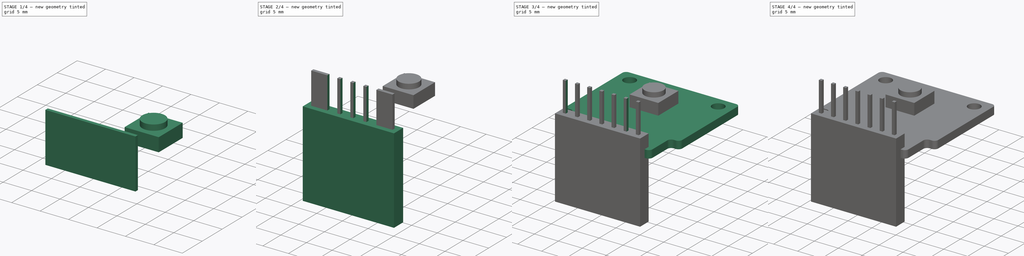
[diagram: build sequence overview — one tinted view per stage of 4, left to right]
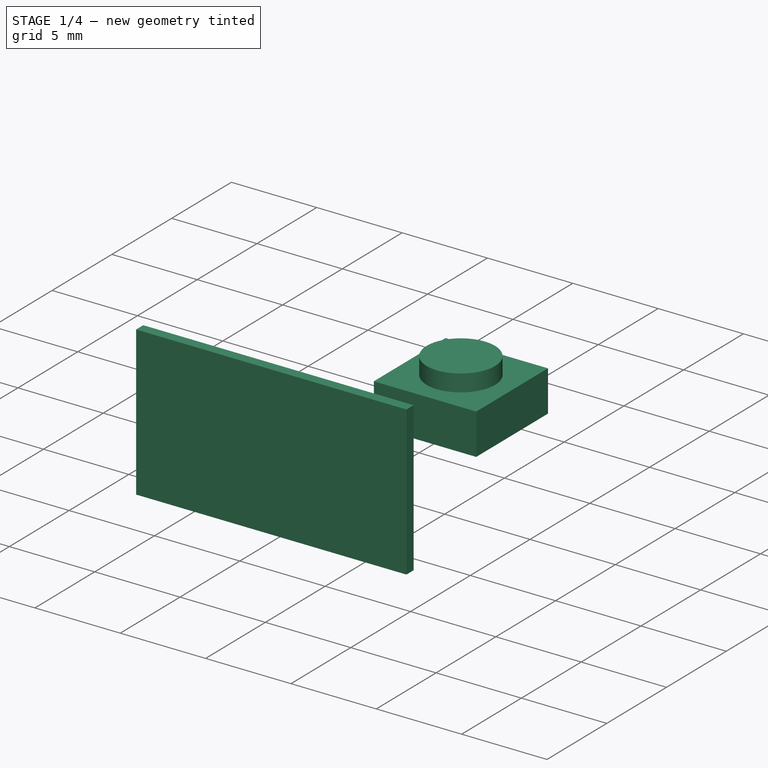
[diagram: stage 1 of 4 — iso view after this stage's code; geometry added in this stage tinted green]
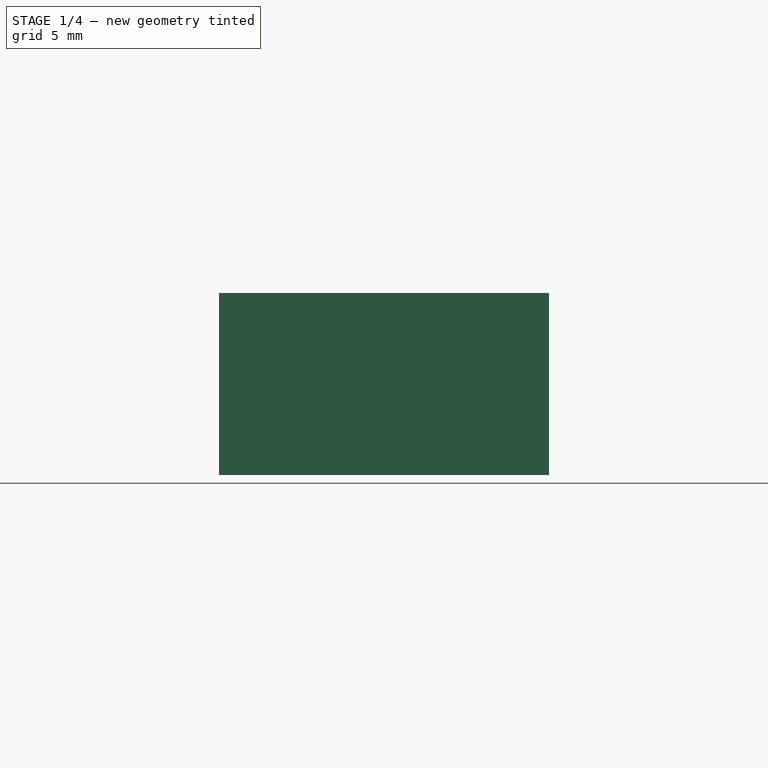
[diagram: stage 1 of 4 — front view after this stage's code; geometry added in this stage tinted green]
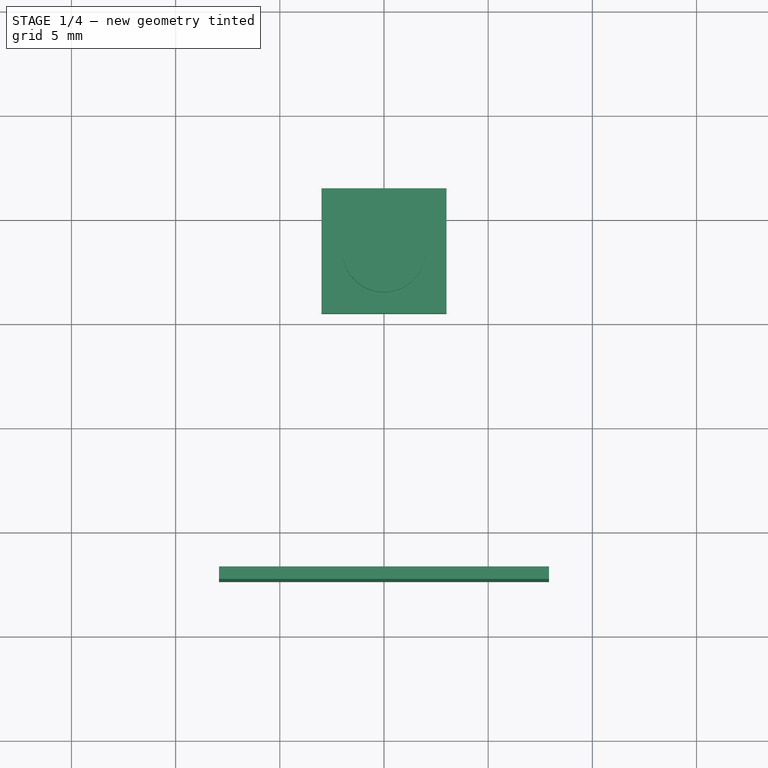
[diagram: stage 1 of 4 — top view after this stage's code; geometry added in this stage tinted green]
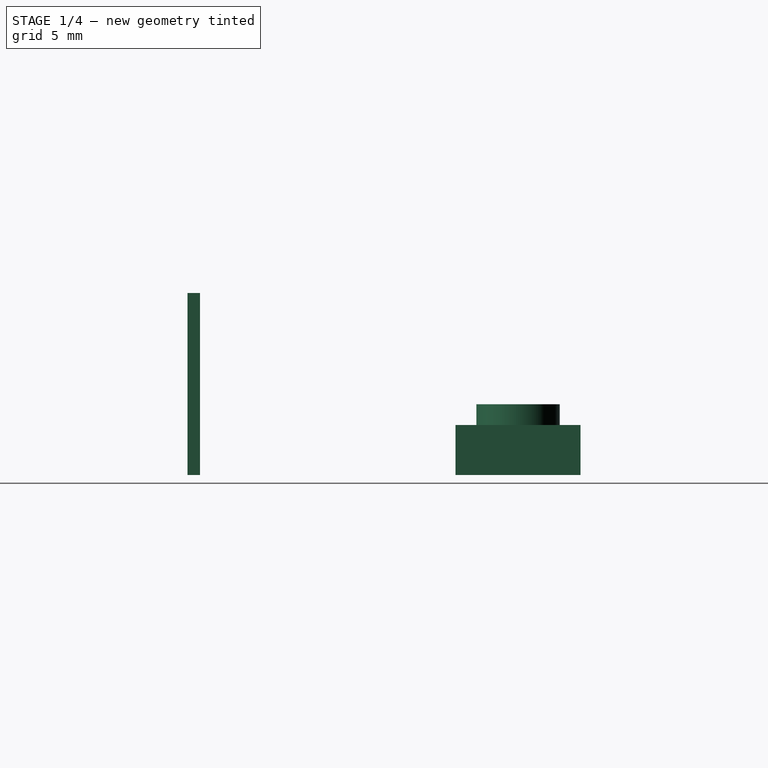
[diagram: stage 1 of 4 — right view after this stage's code; geometry added in this stage tinted green]
FCSTD DOCUMENT  (FreeCAD 0.20R29177 +426 (Git))
Label: Pimoroni_OptFlowSens
License: All rights reserved
LicenseURL: http://en.wikipedia.org/wiki/All_rights_reserved
objects: Sketcher::SketchObject×9, PartDesign::Pad×6, PartDesign::Body×5, PartDesign::LinearPattern×4, PartDesign::Pocket×3, Spreadsheet::Sheet×1, App::Part×1
note: 36 computed .brp shape members not serialized (recipe doc carries the construction recipe); baked Part::Feature solids carry a one-line shape summary decoded from their .brp

FEATURE [PartDesign::Body] Body012  label="PinBlock"
  Group = -> [Sketch014,Pad007]
  Origin = -> Origin016
  Placement = pos=(0,1.6,-4.2) rot=(0,0,1;0rad)
  Tip = -> Pad007
FEATURE [Sketcher::SketchObject] Sketch017
  FullyConstrained = true
  MapMode = 5
  Placement = pos=(0,0,0) rot=(1,0,0;1.5708rad)
  Support = -> [XZ_Plane017]
  expr: Constraints[57] = <<params>>.pin_leng * 2
  expr: Constraints[58] = <<params>>.pin_square_block_dim - <<params>>.std_tol
  expr: Constraints[59] = <<params>>.pin_width
  expr: Constraints[61] = <<params>>.pin_spacing
  sketch-geometry (24):
    g0: LineSegment StartX=-2.24 StartY=14.64 StartZ=0 EndX=-0.3 EndY=14.64 EndZ=0
    g1: LineSegment StartX=-0.3 StartY=14.64 StartZ=0 EndX=-0.3 EndY=2.24 EndZ=0
    g2: LineSegment StartX=-0.3 StartY=2.24 StartZ=0 EndX=-2.24 EndY=2.24 EndZ=0
    g3: LineSegment StartX=-2.24 StartY=2.24 StartZ=0 EndX=-2.24 EndY=14.64 EndZ=0
    g4: LineSegment StartX=0.3 StartY=14.64 StartZ=0 EndX=2.24 EndY=14.64 EndZ=0
    g5: LineSegment StartX=2.24 StartY=14.64 StartZ=0 EndX=2.24 EndY=2.24 EndZ=0
    g6: LineSegment StartX=2.24 StartY=2.24 StartZ=0 EndX=0.3 EndY=2.24 EndZ=0
    g7: LineSegment StartX=0.3 StartY=2.24 StartZ=0 EndX=0.3 EndY=14.64 EndZ=0
    g8: LineSegment StartX=2.84 StartY=14.64 StartZ=0 EndX=4.78 EndY=14.64 EndZ=0
    g9: LineSegment StartX=4.78 StartY=14.64 StartZ=0 EndX=4.78 EndY=2.24 EndZ=0
    g10: LineSegment StartX=4.78 StartY=2.24 StartZ=0 EndX=2.84 EndY=2.24 EndZ=0
    g11: LineSegment StartX=2.84 StartY=2.24 StartZ=0 EndX=2.84 EndY=14.64 EndZ=0
    g12: LineSegment StartX=-4.78 StartY=14.64 StartZ=0 EndX=-2.84 EndY=14.64 EndZ=0
    g13: LineSegment StartX=-2.84 StartY=14.64 StartZ=0 EndX=-2.84 EndY=2.24 EndZ=0
    g14: LineSegment StartX=-2.84 StartY=2.24 StartZ=0 EndX=-4.78 EndY=2.24 EndZ=0
    g15: LineSegment StartX=-4.78 StartY=2.24 StartZ=0 EndX=-4.78 EndY=14.64 EndZ=0
    g16: LineSegment StartX=-2.84 StartY=14.64 StartZ=0 EndX=-2.24 EndY=14.64 EndZ=0
    g17: LineSegment StartX=-0.3 StartY=14.64 StartZ=0 EndX=0.3 EndY=14.64 EndZ=0
    g18: LineSegment StartX=2.24 StartY=14.64 StartZ=0 EndX=2.84 EndY=14.64 EndZ=0
    g19: LineSegment StartX=-2.84 StartY=2.24 StartZ=0 EndX=-2.24 EndY=2.24 EndZ=0
    g20: LineSegment StartX=-0.3 StartY=2.24 StartZ=0 EndX=0.3 EndY=2.24 EndZ=0
    g21: LineSegment StartX=2.24 StartY=2.24 StartZ=0 EndX=2.84 EndY=2.24 EndZ=0
    g22: GeomPoint X=0 Y=2.24 Z=0
    g23: GeomPoint X=2.54 Y=2.24 Z=0
  constraints (62):
    c: Coincident(g0,g1)
    c: Coincident(g1,g2)
    c: Coincident(g2,g3)
    c: Coincident(g3,g0)
    c: Horizontal(g0)
    c: Horizontal(g2)
    c: Vertical(g1)
    c: Vertical(g3)
    c: Coincident(g4,g5)
    c: Coincident(g5,g6)
    c: Coincident(g6,g7)
    c: Coincident(g7,g4)
    c: Horizontal(g4)
    c: Horizontal(g6)
    c: Vertical(g5)
    c: Vertical(g7)
    c: Coincident(g8,g9)
    c: Coincident(g9,g10)
    c: Coincident(g10,g11)
    c: Coincident(g11,g8)
    c: Horizontal(g8)
    c: Horizontal(g10)
    c: Vertical(g9)
    c: Vertical(g11)
    c: Coincident(g12,g13)
    c: Coincident(g13,g14)
    c: Coincident(g14,g15)
    c: Coincident(g15,g12)
    c: Horizontal(g12)
    c: Horizontal(g14)
    c: Vertical(g13)
    c: Vertical(g15)
    c: Equal(g12,g0)
    c: Equal(g0,g4)
    c: Equal(g4,g8)
    c: Coincident(g16,g12)
    c: Coincident(g16,g0)
    c: Coincident(g17,g0)
    c: Coincident(g17,g4)
    c: Horizontal(g17)
    c: Coincident(g18,g4)
    c: Coincident(g18,g8)
    c: Horizontal(g18)
    c: Coincident(g19,g13)
    c: Coincident(g19,g2)
    c: Coincident(g20,g1)
    c: Coincident(g20,g6)
    c: Coincident(g21,g5)
    c: Coincident(g21,g10)
    c: Equal(g16,g17)
    c: Equal(g17,g18)
    c: Horizontal(g16)
    c: Horizontal(g19)
    c: Horizontal(g20)
    c: Horizontal(g21)
    c: PointOnObject(g22,g-2)
    c: Symmetric(g1,g6,g22)
    c: DistanceY(g9,g9) = 12.4
    c: DistanceY(g-1,g22) = 2.24
    c: DistanceX(g17,g17) = 0.6
    c: Symmetric(g5,g10,g23)
    c: DistanceX(g22,g23) = 2.54
FEATURE [Sketcher::SketchObject] Sketch016
  FullyConstrained = true
  MapMode = 5
  Support = -> [XY_Plane017]
  expr: Constraints[10] = <<params>>.light_width / 2 - <<params>>.light_hole_edge_offset
  expr: Constraints[11] = <<params>>.pin_width
  expr: Constraints[12] = <<params>>.pin_square_block_dim * (<<params>>.light_num_pins - 1) + <<params>>.pin_width
  sketch-geometry (5):
    g0: LineSegment StartX=-7.92 StartY=-11.765 StartZ=0 EndX=7.92 EndY=-11.765 EndZ=0
    g1: LineSegment StartX=7.92 StartY=-11.765 StartZ=0 EndX=7.92 EndY=-12.365 EndZ=0
    g2: LineSegment StartX=7.92 StartY=-12.365 StartZ=0 EndX=-7.92 EndY=-12.365 EndZ=0
    g3: LineSegment StartX=-7.92 StartY=-12.365 StartZ=0 EndX=-7.92 EndY=-11.765 EndZ=0
    g4: GeomPoint X=0 Y=-12.065 Z=0
  constraints (13):
    c: Coincident(g0,g1)
    c: Coincident(g1,g2)
    c: Coincident(g2,g3)
    c: Coincident(g3,g0)
    c: Horizontal(g0)
    c: Horizontal(g2)
    c: Vertical(g1)
    c: Vertical(g3)
    c: PointOnObject(g4,g-2)
    c: Symmetric(g2,g0,g4)
    c: DistanceY(g4,g-1) = 12.065
    c: DistanceY(g1,g1) = 0.6
    c: DistanceX(g2,g2) = 15.84
FEATURE [PartDesign::Pad] Pad008  label="Pad_PinPLate"
  Direction = (0,0,1)
  Length = 8.74
  Length2 = 100
  Profile = -> Sketch016
  Type = 0
  expr: Length = <<params>>.pin_square_block_dim + <<params>>.pin_leng
FEATURE [PartDesign::Body] Body014  label="JumperHeader"
  Group = -> [Sketch018,Pad009]
  Origin = -> Origin018
  Placement = pos=(0,1.6,-4.2) rot=(0,0,1;0rad)
  Tip = -> Pad009
FEATURE [Sketcher::SketchObject] Sketch019
  FullyConstrained = true
  MapMode = 5
  Support = -> [XY_Plane019]
  expr: Constraints[12] = 12mm - 5.5mm
  sketch-geometry (5):
    g0: LineSegment StartX=-3 StartY=6.5 StartZ=0 EndX=3 EndY=6.5 EndZ=0
    g1: LineSegment StartX=3 StartY=6.5 StartZ=0 EndX=3 EndY=0.5 EndZ=0
    g2: LineSegment StartX=3 StartY=0.5 StartZ=0 EndX=-3 EndY=0.5 EndZ=0
    g3: LineSegment StartX=-3 StartY=0.5 StartZ=0 EndX=-3 EndY=6.5 EndZ=0
    g4: GeomPoint X=0 Y=3.5 Z=0
  constraints (13):
    c: Coincident(g0,g1)
    c: Coincident(g1,g2)
    c: Coincident(g2,g3)
    c: Coincident(g3,g0)
    c: Horizontal(g0)
    c: Horizontal(g2)
    c: Vertical(g1)
    c: Vertical(g3)
    c: Equal(g1,g0)
    c: Symmetric(g2,g0,g4)
    c: PointOnObject(g4,g-2)
    c: DistanceY(g1,g1) = 6
    c: DistanceY(g-1,g0) = 6.5
FEATURE [PartDesign::Pad] Pad010
  Direction = (1,1,1)
  Length = 2.4
  Length2 = 100
  Profile = -> Sketch019
  Type = 0
  expr: Length = 4mm - 1.6mm
FEATURE [Sketcher::SketchObject] Sketch020
  FullyConstrained = true
  MapMode = 5
  Support = -> [XY_Plane019]
  expr: Constraints[12] = 12mm - 5.5mm
  sketch-geometry (6):
    g0: LineSegment StartX=-3 StartY=6.5 StartZ=0 EndX=3 EndY=6.5 EndZ=0
    g1: LineSegment StartX=3 StartY=6.5 StartZ=0 EndX=3 EndY=0.5 EndZ=0
    g2: LineSegment StartX=3 StartY=0.5 StartZ=0 EndX=-3 EndY=0.5 EndZ=0
    g3: LineSegment StartX=-3 StartY=0.5 StartZ=0 EndX=-3 EndY=6.5 EndZ=0
    g4: GeomPoint X=0 Y=3.5 Z=0
    g5: Circle CenterX=0 CenterY=3.5 CenterZ=0 NormalX=0 NormalY=0 NormalZ=1 AngleXU=0 Radius=2
  constraints (15):
    c: Coincident(g0,g1)
    c: Coincident(g1,g2)
    c: Coincident(g2,g3)
    c: Coincident(g3,g0)
    c: Horizontal(g0)
    c: Horizontal(g2)
    c: Vertical(g1)
    c: Vertical(g3)
    c: Equal(g1,g0)
    c: Symmetric(g2,g0,g4)
    c: PointOnObject(g4,g-2)
    c: DistanceY(g1,g1) = 6
    c: DistanceY(g-1,g0) = 6.5
    c: Coincident(g5,g4)
    c: Diameter(g5) = 4
FEATURE [PartDesign::Pad] Pad011
  BaseFeature = -> Pad010
  Direction = (1,1,1)
  Length = 3.4
  Length2 = 100
  Profile = -> Sketch020
  Type = 0
  expr: Length = 5mm - 1.6mm
FEATURE [PartDesign::Body] Body015  label="OptSens"
  Group = -> [Sketch019,Pad010,Sketch020,Pad011]
  Origin = -> Origin019
  Tip = -> Pad011
FEATURE [App::Part] Part  label="Pimoroni_OptFlowSens"
  Group = -> [Body,Body012,Body013,Body014,Body015]
  Origin = -> Origin
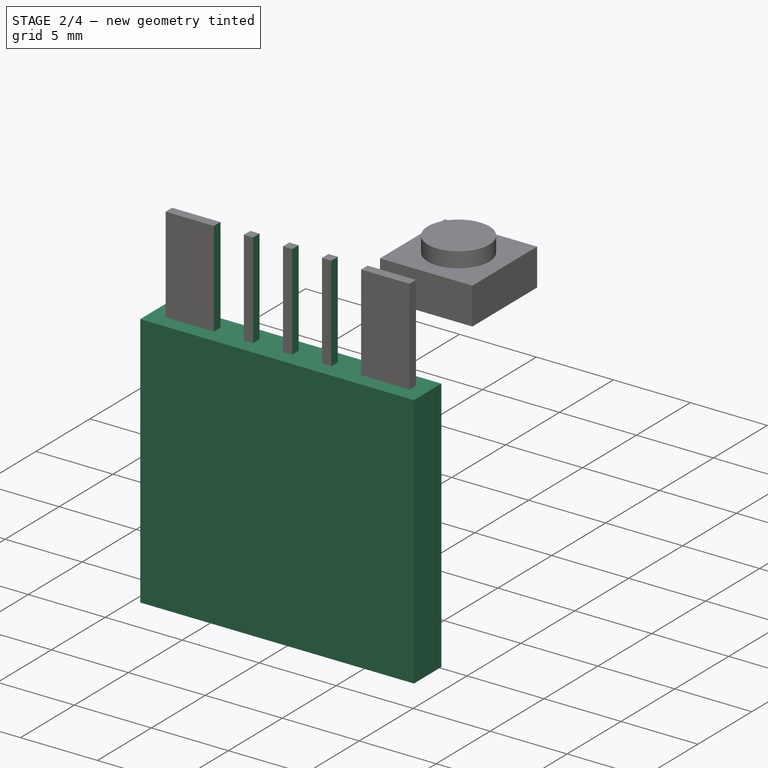
[diagram: stage 2 of 4 — iso view after this stage's code; geometry added in this stage tinted green]
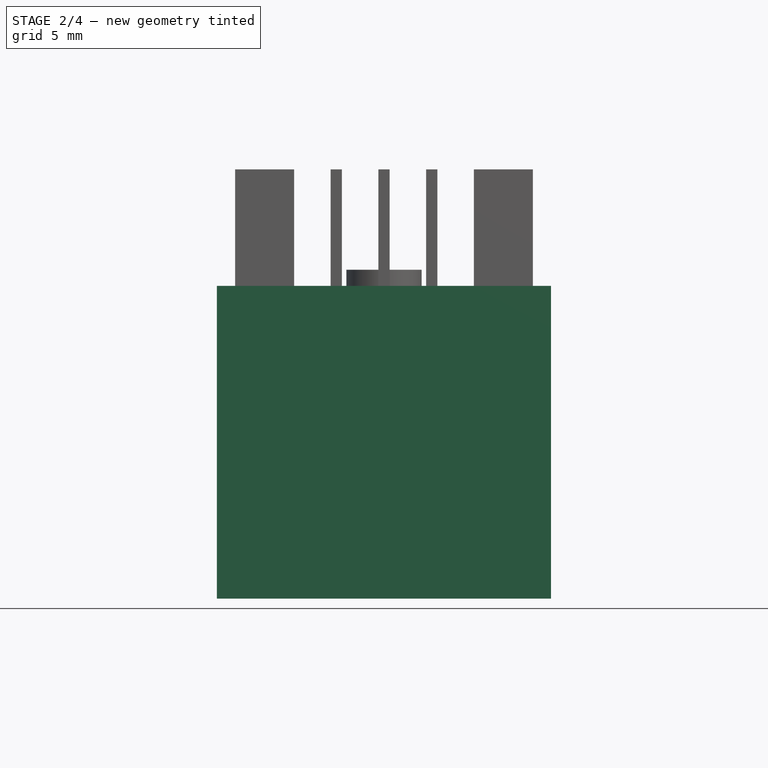
[diagram: stage 2 of 4 — front view after this stage's code; geometry added in this stage tinted green]
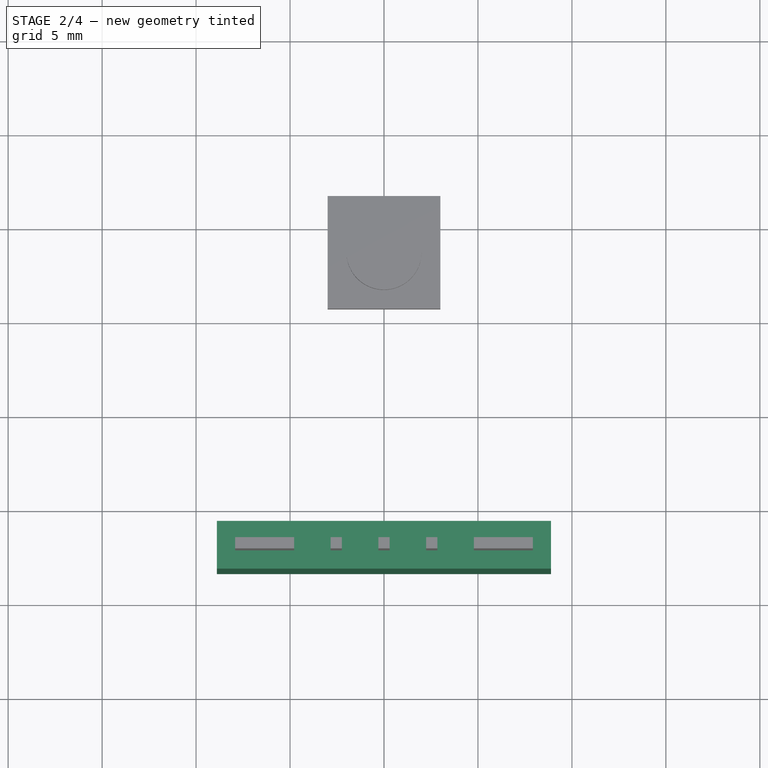
[diagram: stage 2 of 4 — top view after this stage's code; geometry added in this stage tinted green]
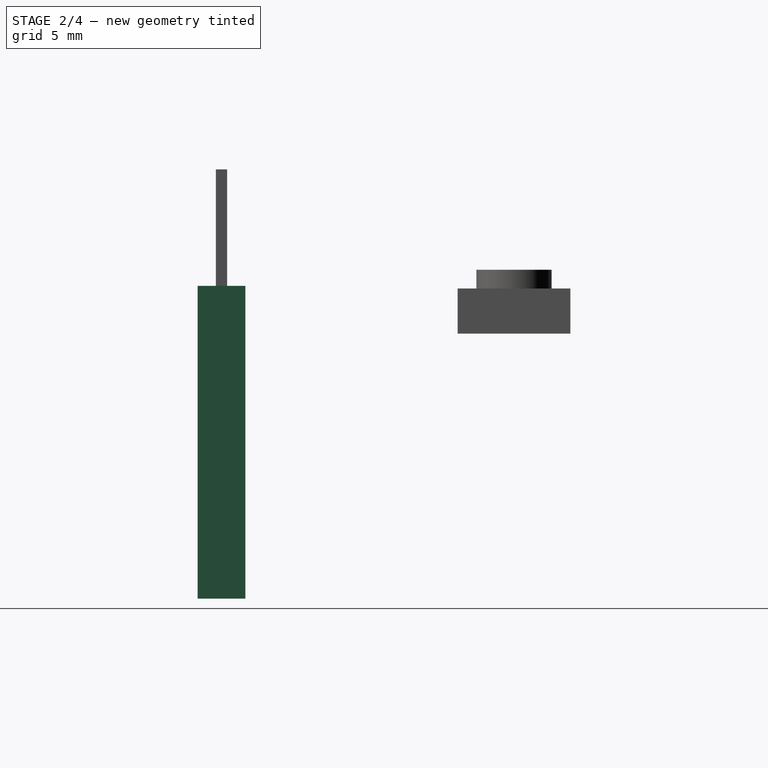
[diagram: stage 2 of 4 — right view after this stage's code; geometry added in this stage tinted green]
FEATURE [PartDesign::Body] Body  label="Plate"
  Group = -> [Sketch,Pad,Sketch001,Pocket,Sketch002,Pocket001,LinearPattern,LinearPattern001]
  Origin = -> Origin001
  Tip = -> LinearPattern001
FEATURE [Spreadsheet::Sheet] Spreadsheet  label="params"
  cells = A1=Inch to mm; B1(intomm)==25.4mm; E1=std tol; F1(std_tol)==0.3mm; A3=Adafruit Light; B3=Inch; C3=mm; A4=Length; B4=1; C4(light_leng)==B4 * $B$1; A5=Width; B5=1.15; C5(light_width)==B5 * $B$1; A6=Hole Leng Space; B6=0.45; C6(light_hole_leng_space)==B6 * $B$1; A7=Hole Diam; B7=0.1; C7(light_hole_diam)==B7 * $B$1; A8=Hole Edge Offset; B8=0.1; C8(light_hole_edge_offset)==B8 * $B$1; A9=Pin Edge Offset; B9=0.1; C9(light_pin_edge_offset)==B9 * $B$1; A10=Num Pins; B10(light_num_pins)=7; A12=General Parameters; A13=Board Thick; B13(board_thickness)==1.65mm; A15=Pin Hole Diam; B15(pin_hole_diam)==0.8mm; A16=Pin Hole Space; B16(pin_hole_space)==2.54mm; A17=Pin Width; B17(pin_width)==0.6mm; A18=Pin Square Block Dim; B18(pin_square_block_dim)==2.54mm; A19=Pin Leng; B19(pin_leng)==6.2mm; A20=Pin Jumper Leng; B20(pin_jumper_leng)==14.1mm; A21=Pin Spacing; B21(pin_spacing)==2.54mm
FEATURE [Sketcher::SketchObject] Sketch014
  FullyConstrained = true
  MapMode = 5
  Support = -> [XY_Plane016]
  expr: Constraints[10] = <<params>>.pin_square_block_dim * <<params>>.light_num_pins
  expr: Constraints[11] = <<params>>.light_width / 2 - <<params>>.light_hole_edge_offset
  expr: Constraints[12] = <<params>>.pin_square_block_dim
  sketch-geometry (5):
    g0: LineSegment StartX=-8.89 StartY=-10.795 StartZ=0 EndX=8.89 EndY=-10.795 EndZ=0
    g1: LineSegment StartX=8.89 StartY=-10.795 StartZ=0 EndX=8.89 EndY=-13.335 EndZ=0
    g2: LineSegment StartX=8.89 StartY=-13.335 StartZ=0 EndX=-8.89 EndY=-13.335 EndZ=0
    g3: LineSegment StartX=-8.89 StartY=-13.335 StartZ=0 EndX=-8.89 EndY=-10.795 EndZ=0
    g4: GeomPoint X=-1e-16 Y=-12.065 Z=0
  constraints (13):
    c: Coincident(g0,g1)
    c: Coincident(g1,g2)
    c: Coincident(g2,g3)
    c: Coincident(g3,g0)
    c: Horizontal(g0)
    c: Horizontal(g2)
    c: Vertical(g1)
    c: Vertical(g3)
    c: PointOnObject(g4,g-2)
    c: Symmetric(g2,g0,g4)
    c: DistanceX(g2,g2) = 17.78
    c: DistanceY(g4,g-1) = 12.065
    c: DistanceY(g1,g1) = 2.54
FEATURE [PartDesign::Pad] Pad007  label="Pad_PinBlock"
  Direction = (0,0,1)
  Length = 2.54
  Length2 = 100
  Profile = -> Sketch014
  Type = 0
  expr: Length = <<params>>.pin_square_block_dim
FEATURE [PartDesign::Pocket] Pocket005  label="Pocket_PinCut"
  BaseFeature = -> Pad008
  Direction = (0,1,2e-16)
  Length = 5
  Length2 = 100
  Midplane = true
  Profile = -> Sketch017
  Type = 1
FEATURE [PartDesign::Body] Body013  label="Pins"
  Group = -> [Sketch016,Pad008,Sketch017,Pocket005,LinearPattern002,LinearPattern006]
  Origin = -> Origin017
  Placement = pos=(0,-22.5,-1.6) rot=(1,0,0;3.14159rad)
  Tip = -> LinearPattern006
FEATURE [Sketcher::SketchObject] Sketch018
  FullyConstrained = true
  MapMode = 5
  Support = -> [XY_Plane018]
  expr: Constraints[10] = <<params>>.pin_square_block_dim * <<params>>.light_num_pins
  expr: Constraints[11] = <<params>>.light_width / 2 - <<params>>.light_hole_edge_offset
  expr: Constraints[12] = <<params>>.pin_square_block_dim
  sketch-geometry (5):
    g0: LineSegment StartX=-8.89 StartY=-10.795 StartZ=0 EndX=8.89 EndY=-10.795 EndZ=0
    g1: LineSegment StartX=8.89 StartY=-10.795 StartZ=0 EndX=8.89 EndY=-13.335 EndZ=0
    g2: LineSegment StartX=8.89 StartY=-13.335 StartZ=0 EndX=-8.89 EndY=-13.335 EndZ=0
    g3: LineSegment StartX=-8.89 StartY=-13.335 StartZ=0 EndX=-8.89 EndY=-10.795 EndZ=0
    g4: GeomPoint X=-1e-16 Y=-12.065 Z=0
  constraints (13):
    c: Coincident(g0,g1)
    c: Coincident(g1,g2)
    c: Coincident(g2,g3)
    c: Coincident(g3,g0)
    c: Horizontal(g0)
    c: Horizontal(g2)
    c: Vertical(g1)
    c: Vertical(g3)
    c: PointOnObject(g4,g-2)
    c: Symmetric(g2,g0,g4)
    c: DistanceX(g2,g2) = 17.78
    c: DistanceY(g4,g-1) = 12.065
    c: DistanceY(g1,g1) = 2.54
FEATURE [PartDesign::Pad] Pad009  label="Pad_JumperHeader"
  Direction = (0,0,1)
  Length = 14.1
  Length2 = 100
  Profile = -> Sketch018
  Reversed = true
  Type = 0
  expr: Length = <<params>>.pin_jumper_leng
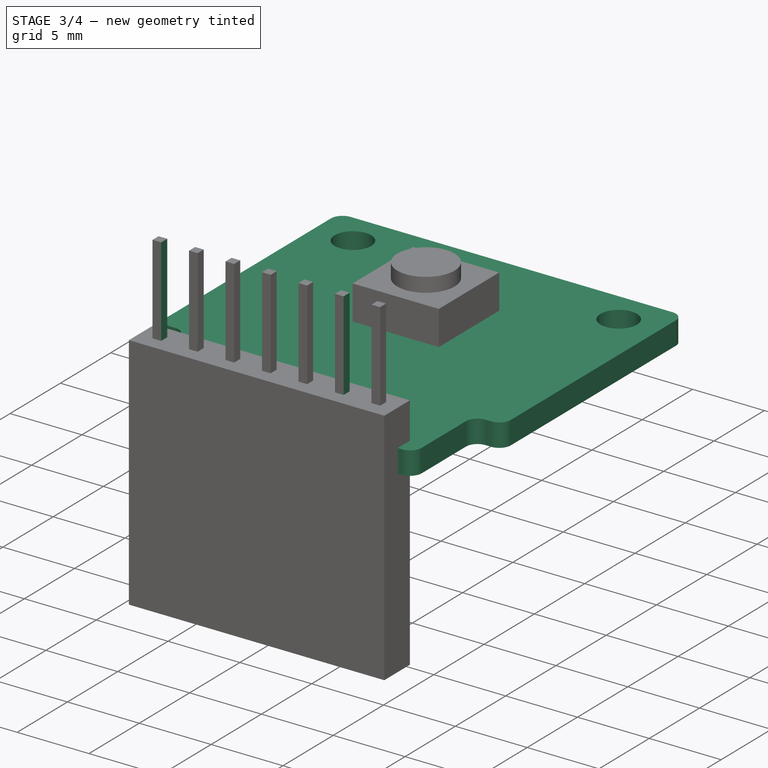
[diagram: stage 3 of 4 — iso view after this stage's code; geometry added in this stage tinted green]
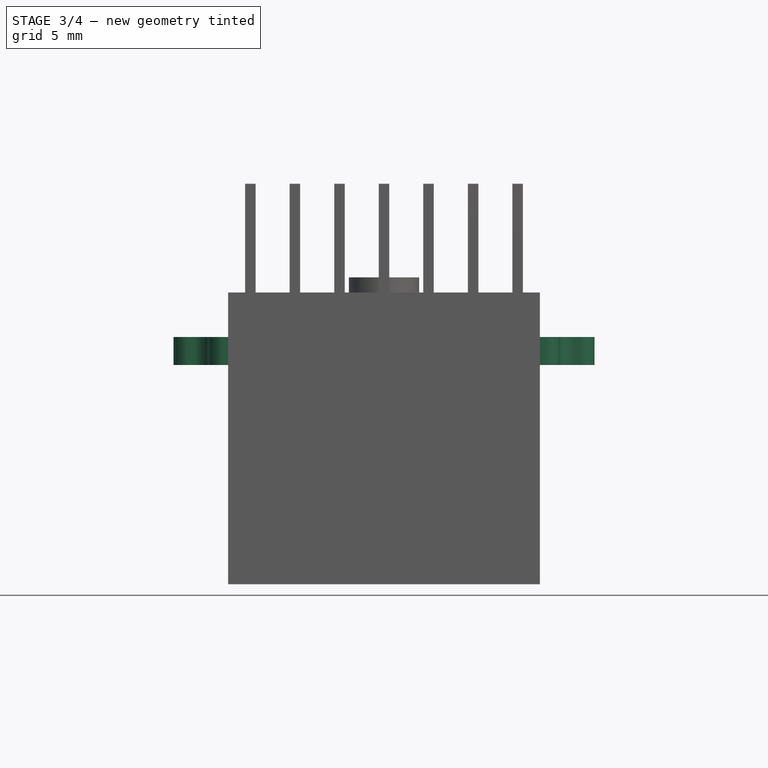
[diagram: stage 3 of 4 — front view after this stage's code; geometry added in this stage tinted green]
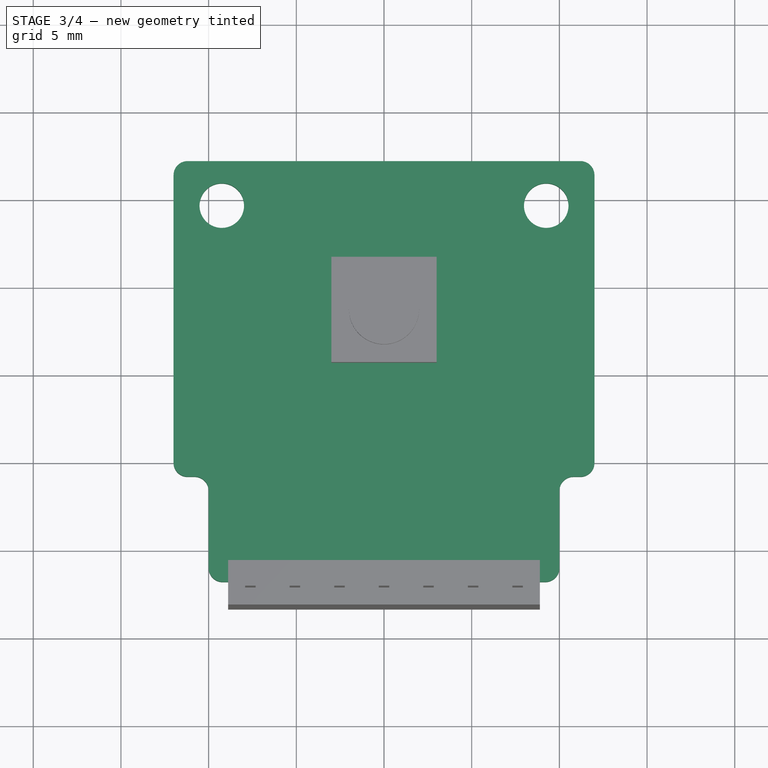
[diagram: stage 3 of 4 — top view after this stage's code; geometry added in this stage tinted green]
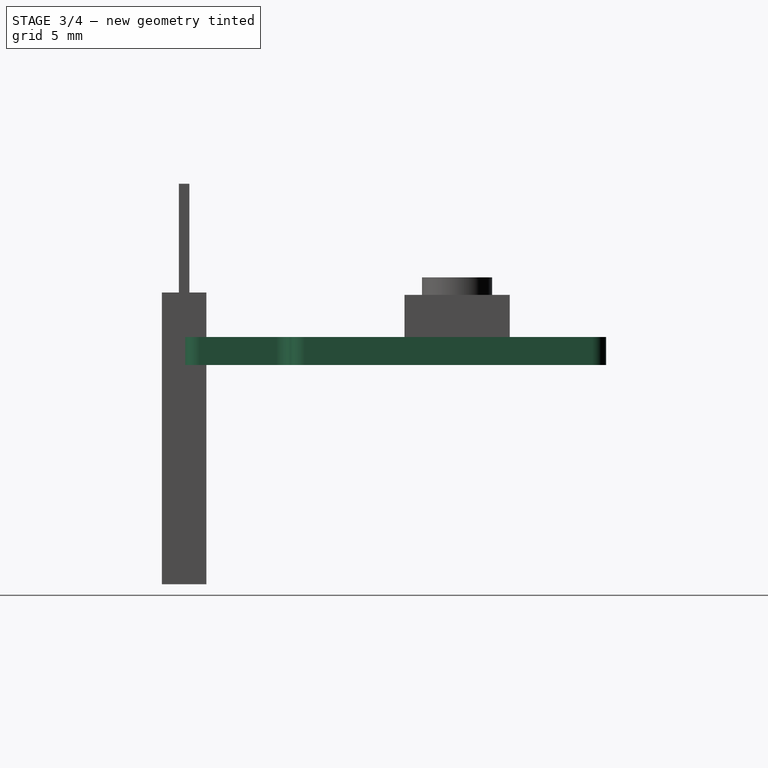
[diagram: stage 3 of 4 — right view after this stage's code; geometry added in this stage tinted green]
FEATURE [Sketcher::SketchObject] Sketch
  FullyConstrained = true
  MapMode = 5
  Support = -> [XY_Plane001]
  sketch-geometry (22):
    g0: LineSegment StartX=-12 StartY=12 StartZ=0 EndX=12 EndY=12 EndZ=0
    g1: LineSegment StartX=12 StartY=12 StartZ=0 EndX=12 EndY=-12 EndZ=0
    g2: LineSegment StartX=12 StartY=-12 StartZ=0 EndX=-12 EndY=-12 EndZ=0
    g3: LineSegment StartX=-12 StartY=-12 StartZ=0 EndX=-12 EndY=12 EndZ=0
    g4: LineSegment StartX=-11.2 StartY=12 StartZ=0 EndX=11.2 EndY=12 EndZ=0
    g5: LineSegment StartX=-12 StartY=11.2 StartZ=0 EndX=-12 EndY=-5.2 EndZ=0
    g6: LineSegment StartX=-11.2 StartY=-6 StartZ=0 EndX=-10.8 EndY=-6 EndZ=0
    g7: LineSegment StartX=-10 StartY=-6.8 StartZ=0 EndX=-10 EndY=-11.2 EndZ=0
    g8: LineSegment StartX=-9.2 StartY=-12 StartZ=0 EndX=9.2 EndY=-12 EndZ=0
    g9: LineSegment StartX=10 StartY=-11.2 StartZ=0 EndX=10 EndY=-6.8 EndZ=0
    g10: LineSegment StartX=10.8 StartY=-6 StartZ=0 EndX=11.2 EndY=-6 EndZ=0
    g11: LineSegment StartX=12 StartY=-5.2 StartZ=0 EndX=12 EndY=11.2 EndZ=0
    g12: ArcOfCircle CenterX=11.2 CenterY=11.2 CenterZ=0 NormalX=0 NormalY=0 NormalZ=1 AngleXU=0 Radius=0.8 StartAngle=1e-16 EndAngle=1.5708
    g13: ArcOfCircle CenterX=11.2 CenterY=-5.2 CenterZ=0 NormalX=0 NormalY=0 NormalZ=1 AngleXU=0 Radius=0.8 StartAngle=4.71239 EndAngle=6.28319
    g14: ArcOfCircle CenterX=10.8 CenterY=-6.8 CenterZ=0 NormalX=0 NormalY=0 NormalZ=1 AngleXU=0 Radius=0.8 StartAngle=1.5708 EndAngle=3.14159
    g15: ArcOfCircle CenterX=9.2 CenterY=-11.2 CenterZ=0 NormalX=0 NormalY=0 NormalZ=1 AngleXU=0 Radius=0.8 StartAngle=4.71239 EndAngle=6.28319
    g16: ArcOfCircle CenterX=-9.2 CenterY=-11.2 CenterZ=0 NormalX=0 NormalY=0 NormalZ=1 AngleXU=0 Radius=0.8 StartAngle=3.14159 EndAngle=4.71239
    g17: ArcOfCircle CenterX=-10.8 CenterY=-6.8 CenterZ=0 NormalX=0 NormalY=0 NormalZ=1 AngleXU=0 Radius=0.8 StartAngle=0 EndAngle=1.5708
    g18: ArcOfCircle CenterX=-11.2 CenterY=-5.2 CenterZ=0 NormalX=0 NormalY=0 NormalZ=1 AngleXU=0 Radius=0.8 StartAngle=3.14159 EndAngle=4.71239
    g19: ArcOfCircle CenterX=-11.2 CenterY=11.2 CenterZ=0 NormalX=0 NormalY=0 NormalZ=1 AngleXU=0 Radius=0.8 StartAngle=1.5708 EndAngle=3.14159
    g20: GeomPoint X=0 Y=-12 Z=0
    g21: LineSegment StartX=-10.8 StartY=-6 StartZ=0 EndX=10.8 EndY=-6 EndZ=0
  constraints (54):
    c: Coincident(g0,g1)
    c: Coincident(g1,g2)
    c: Coincident(g2,g3)
    c: Coincident(g3,g0)
    c: Horizontal(g0)
    c: Horizontal(g2)
    c: Vertical(g1)
    c: Vertical(g3)
    c: Symmetric(g2,g0,g-1)
    c: DistanceY(g1,g1) = 24
    c: Equal(g1,g0)
    c: Horizontal(g4)
    c: Vertical(g5)
    c: Horizontal(g6)
    c: Vertical(g7)
    c: Horizontal(g8)
    c: Vertical(g9)
    c: Horizontal(g10)
    c: Vertical(g11)
    c: Tangent(g4,g12) = 1.5708
    c: Tangent(g11,g12) = -1.5708
    c: Tangent(g10,g13) = -1.5708
    c: Tangent(g11,g13) = -1.5708
    c: Tangent(g10,g14) = 1.5708
    c: Tangent(g9,g14) = 1.5708
    c: Tangent(g9,g15) = -1.5708
    c: Tangent(g8,g15) = -1.5708
    c: Tangent(g8,g16) = -1.5708
    c: Tangent(g7,g16) = -1.5708
    c: Tangent(g7,g17) = 1.5708
    c: Tangent(g6,g17) = 1.5708
    c: Tangent(g6,g18) = -1.5708
    c: Tangent(g5,g18) = -1.5708
    c: Tangent(g5,g19) = -1.5708
    c: Tangent(g4,g19) = 1.5708
    c: Equal(g19,g12)
    c: Equal(g19,g18)
    c: Equal(g19,g17)
    c: Equal(g14,g19)
    c: Equal(g13,g19)
    c: Equal(g19,g16)
    c: Equal(g19,g15)
    c: PointOnObject(g20,g-2)
    c: PointOnObject(g20,g2)
    c: Symmetric(g8,g8,g20)
    c: Radius(g19) = 0.8
    c: DistanceX(g7,g9) = 20
    c: PointOnObject(g5,g3)
    c: PointOnObject(g11,g1)
    c: PointOnObject(g4,g0)
    c: DistanceY(g10,g4) = 18
    c: Horizontal(g21)
    c: Coincident(g21,g6)
    c: Coincident(g21,g10)
FEATURE [PartDesign::Pad] Pad  label="Pad_MainPlate"
  Direction = (1,1,1)
  Length = 1.6
  Length2 = 100
  Profile = -> Sketch
  Reversed = true
  Type = 0
  expr: Length = 1.6
FEATURE [Sketcher::SketchObject] Sketch001
  FullyConstrained = true
  MapMode = 5
  Support = -> [XY_Plane001]
  expr: Constraints[11] = 12mm - 2.54mm
  sketch-geometry (7):
    g0: Circle CenterX=-9.25 CenterY=9.46 CenterZ=0 NormalX=0 NormalY=0 NormalZ=1 AngleXU=0 Radius=1.27
    g1: Circle CenterX=9.25 CenterY=9.46 CenterZ=0 NormalX=0 NormalY=0 NormalZ=1 AngleXU=0 Radius=1.27
    g2: LineSegment StartX=-9.25 StartY=9.46 StartZ=0 EndX=9.25 EndY=9.46 EndZ=0
    g3: GeomPoint X=0 Y=9.46 Z=0
    g4: GeomPoint X=-9.25 Y=9.46 Z=0
    g5: GeomPoint X=9.25 Y=9.46 Z=0
    g6: GeomPoint X=0 Y=9.46 Z=0
  constraints (12):
    c: Coincident(g2,g0)
    c: Coincident(g2,g1)
    c: Horizontal(g2)
    c: PointOnObject(g3,g-2)
    c: Coincident(g4,g0)
    c: Coincident(g5,g1)
    c: Coincident(g6,g3)
    c: Symmetric(g0,g1,g3)
    c: Equal(g0,g1)
    c: DistanceX(g2,g2) = 18.5
    c: Diameter(g1) = 2.54
    c: DistanceY(g-1,g1) = 9.46
FEATURE [PartDesign::Pocket] Pocket  label="Pocket_MtHoles"
  BaseFeature = -> Pad
  Direction = (0,0,-1)
  Length = 5
  Length2 = 100
  Profile = -> Sketch001
  Type = 1
FEATURE [PartDesign::LinearPattern] LinearPattern002
  BaseFeature = -> Pocket005
  Direction = -> X_Axis017
  Length = 7.62
  Occurrences = 2
  Originals = -> [Pocket005]
  expr: Length = <<params>>.pin_square_block_dim * (round(<<params>>.light_num_pins / 2) - 1)
FEATURE [PartDesign::LinearPattern] LinearPattern006
  BaseFeature = -> LinearPattern002
  Direction = -> X_Axis017
  Length = 7.62
  Occurrences = 2
  Originals = -> [Pocket005]
  Reversed = true
  expr: Length = <<params>>.pin_square_block_dim * (round(<<params>>.light_num_pins / 2) - 1)
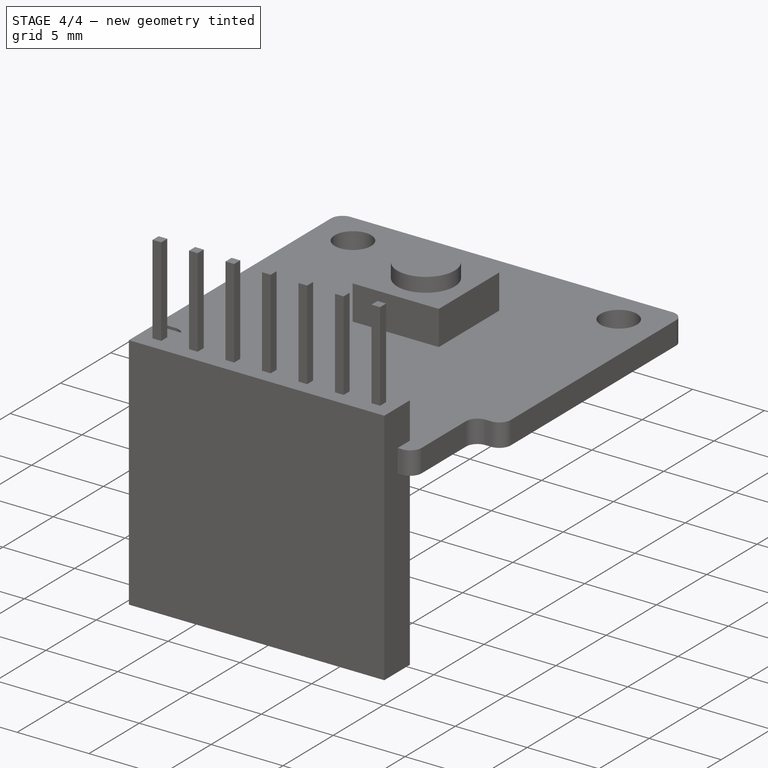
[diagram: stage 4 of 4 — iso view after this stage's code; geometry added in this stage tinted green]
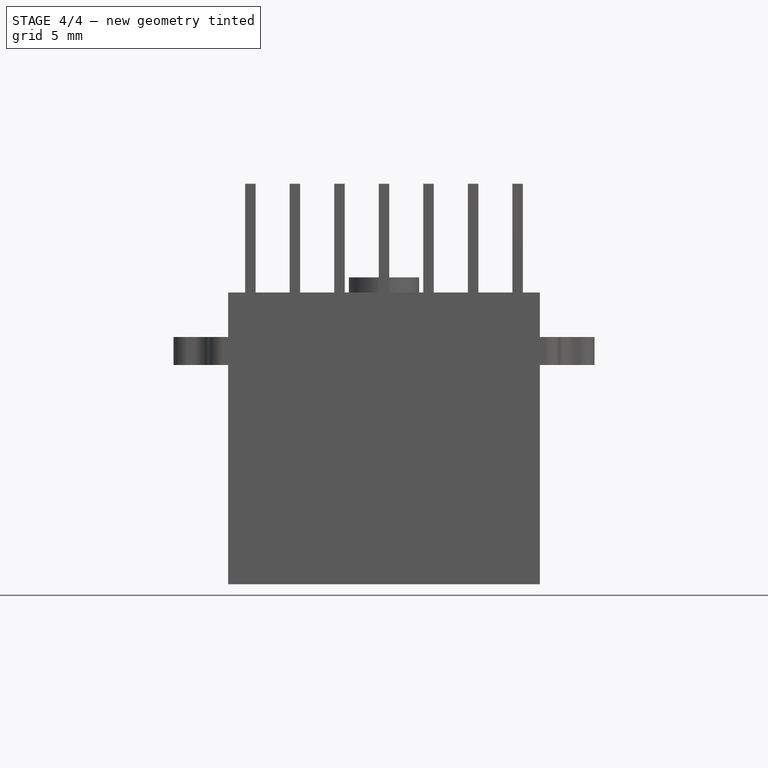
[diagram: stage 4 of 4 — front view after this stage's code; geometry added in this stage tinted green]
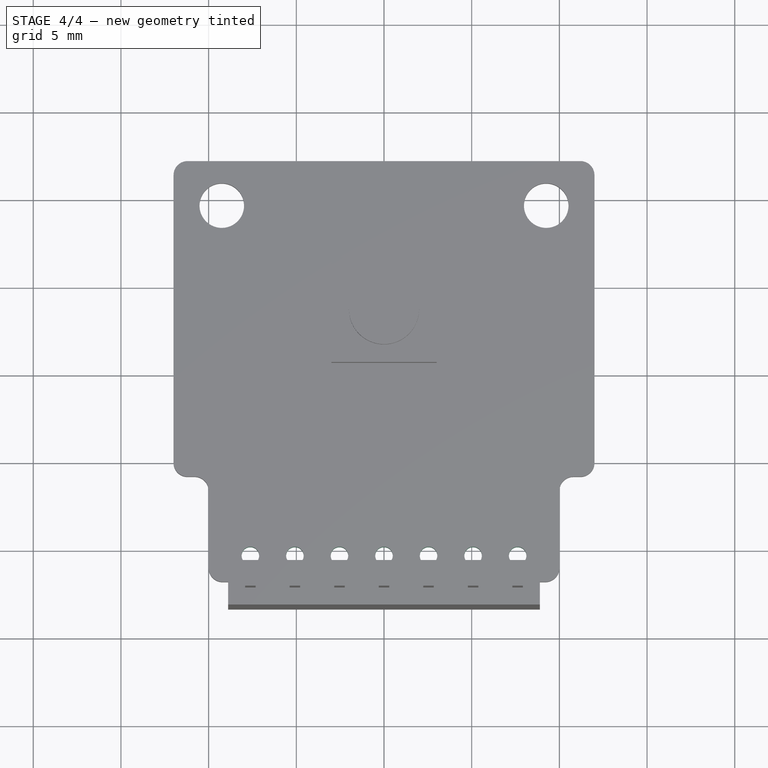
[diagram: stage 4 of 4 — top view after this stage's code; geometry added in this stage tinted green]
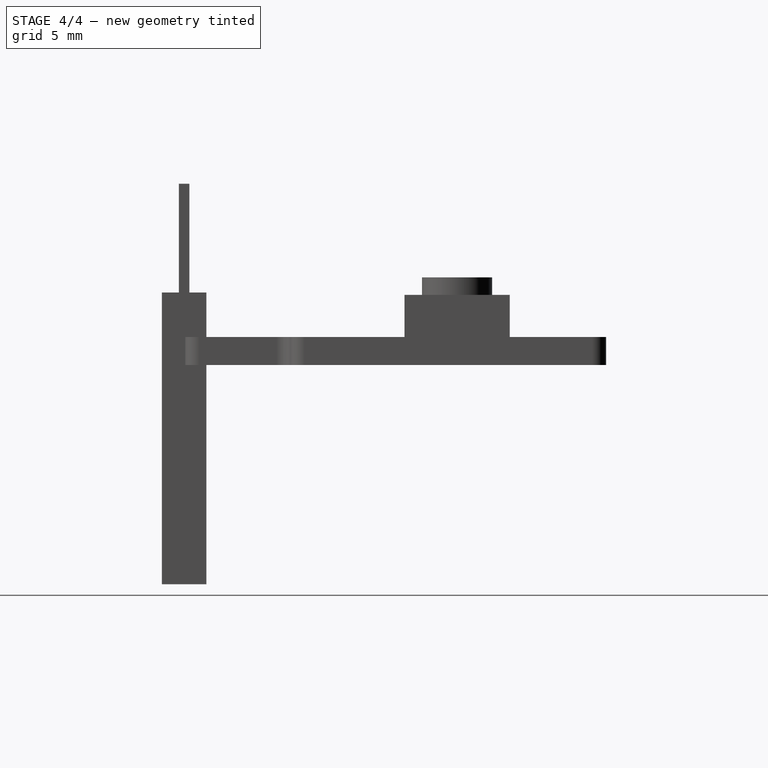
[diagram: stage 4 of 4 — right view after this stage's code; geometry added in this stage tinted green]
FEATURE [Sketcher::SketchObject] Sketch002
  FullyConstrained = true
  MapMode = 5
  Support = -> [XY_Plane001]
  expr: Constraints[2] = 12mm - 1.5mm
  sketch-geometry (1):
    g0: Circle CenterX=0 CenterY=-10.5 CenterZ=0 NormalX=0 NormalY=0 NormalZ=1 AngleXU=0 Radius=0.5
  constraints (3):
    c: PointOnObject(g0,g-2)
    c: Diameter(g0) = 1
    c: DistanceY(g0,g-1) = 10.5
FEATURE [PartDesign::Pocket] Pocket001  label="Pocket_Pinhole"
  BaseFeature = -> Pocket
  Direction = (0,0,-1)
  Length = 5
  Length2 = 100
  Profile = -> Sketch002
  Type = 1
FEATURE [PartDesign::LinearPattern] LinearPattern  label="LinearPattern_Pins1"
  BaseFeature = -> Pocket001
  Direction = -> X_Axis001
  Length = 7.62
  Occurrences = 4
  Originals = -> [Pocket001]
  expr: Length = 2.54mm * 3
FEATURE [PartDesign::LinearPattern] LinearPattern001  label="LinearPattern_Pins2"
  BaseFeature = -> LinearPattern
  Direction = -> X_Axis001
  Length = 7.62
  Occurrences = 4
  Originals = -> [Pocket001]
  Reversed = true
  expr: Length = 2.54mm * 3
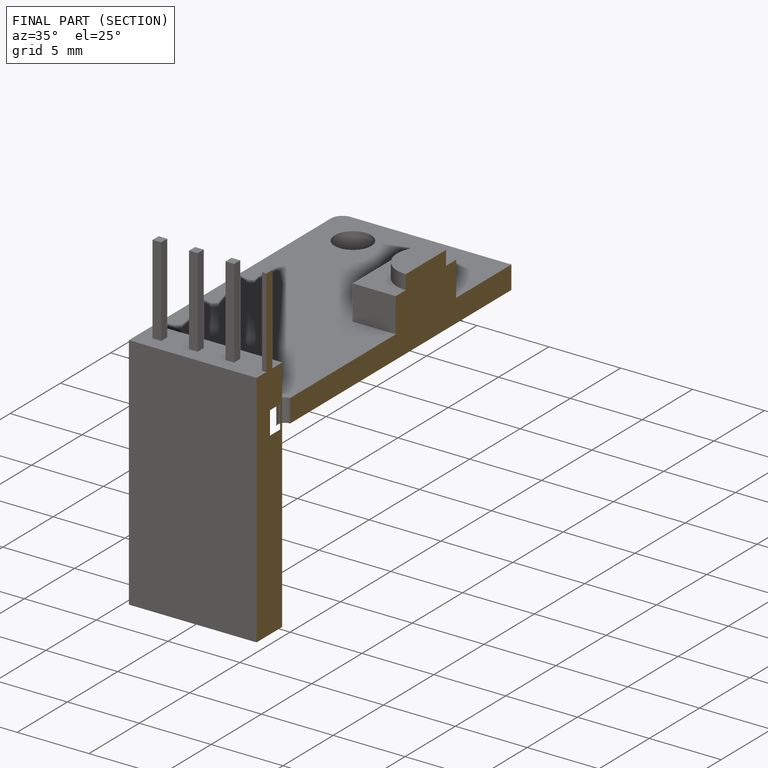
[diagram: finished part — half-section view (interior)]
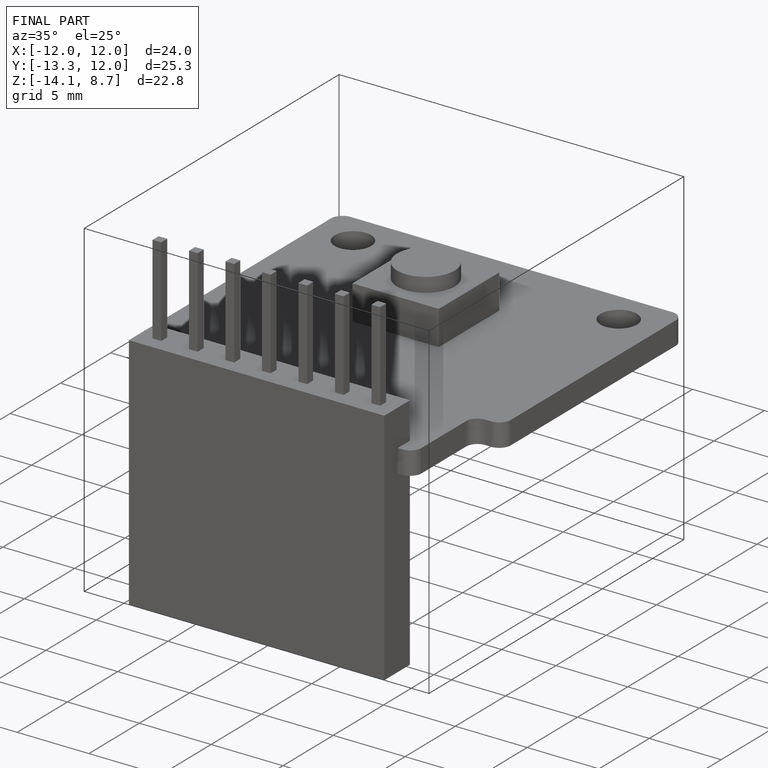
[diagram: finished part — iso view with bounding-box wireframe]
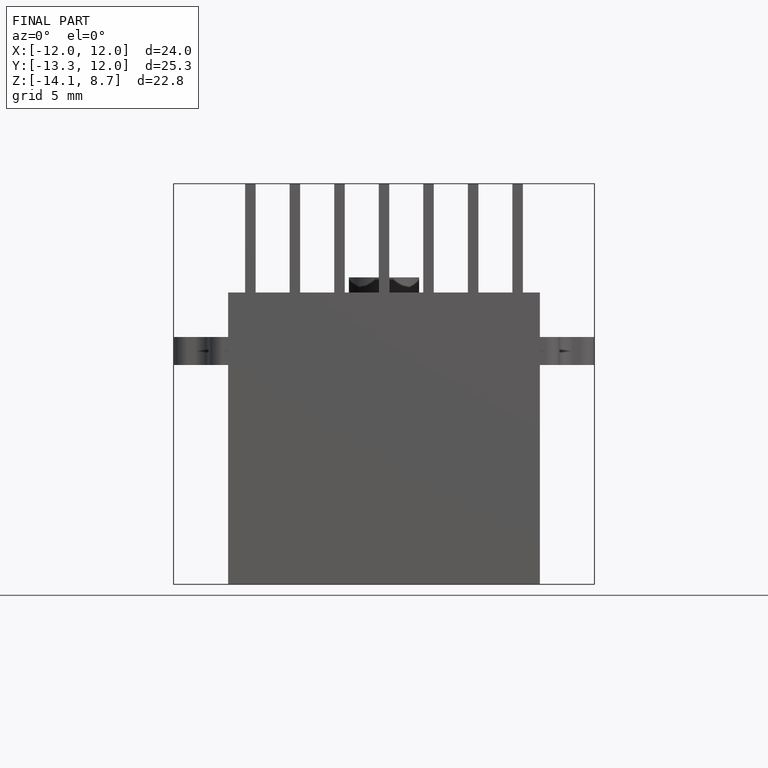
[diagram: finished part — front view with bounding-box wireframe]
